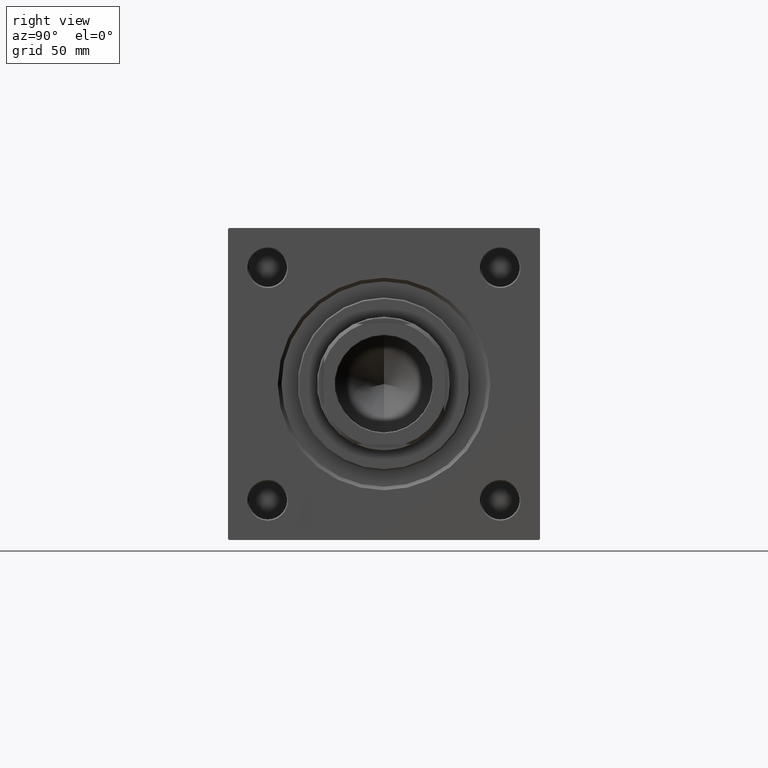
[diagram: clean part render]
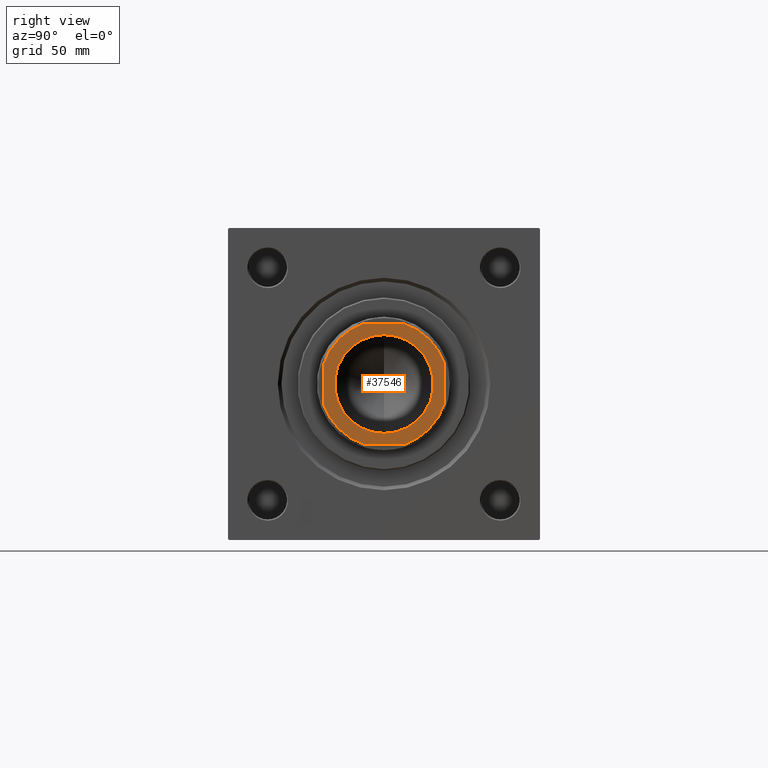
[diagram: same view with one face highlighted and labeled with its STEP entity id]
A machine part, right view. The second image highlights one B-rep face of the part: STEP entity #37546.
In plain terms, the highlighted planar face has unit normal (1, 0, -0).
Its self-contained STEP definition (entity closure, byte-faithful):
#311 = LINE ( 'NONE', #7260, #43880 ) ;
#563 = DIRECTION ( 'NONE',  ( 2.081668171172168513E-16, -1.000000000000000000, 0.000000000000000000 ) ) ;
#1330 = ORIENTED_EDGE ( 'NONE', *, *, #39377, .T. ) ;
#2009 = DIRECTION ( 'NONE',  ( -0.000000000000000000, 0.000000000000000000, 1.000000000000000000 ) ) ;
#2694 = CARTESIAN_POINT ( 'NONE',  ( -24.99999999999999645, -8.789197915623542912, 178.0000000000000284 ) ) ;
#2878 = EDGE_LOOP ( 'NONE', ( #50316, #1330 ) ) ;
#3712 = VERTEX_POINT ( 'NONE', #41317 ) ;
#4905 = EDGE_CURVE ( 'NONE', #32630, #45050, #18047, .T. ) ;
#6199 = VERTEX_POINT ( 'NONE', #19224 ) ;
#6571 = FACE_OUTER_BOUND ( 'NONE', #10293, .T. ) ;
#6693 = CIRCLE ( 'NONE', #35382, 26.50000000000001776 ) ;
#6710 = ORIENTED_EDGE ( 'NONE', *, *, #47039, .T. ) ;
#7260 = CARTESIAN_POINT ( 'NONE',  ( -25.00000000000000711, 25.00000000000000000, 178.0000000000000284 ) ) ;
#8391 = LINE ( 'NONE', #43787, #21760 ) ;
#8435 = CARTESIAN_POINT ( 'NONE',  ( 0.000000000000000000, 0.000000000000000000, 178.0000000000000284 ) ) ;
#8585 = CARTESIAN_POINT ( 'NONE',  ( 0.000000000000000000, 0.000000000000000000, 178.0000000000000284 ) ) ;
#9084 = CARTESIAN_POINT ( 'NONE',  ( -8.789197915623537583, 25.00000000000000000, 178.0000000000000284 ) ) ;
#9869 = CARTESIAN_POINT ( 'NONE',  ( 25.00000000000000000, -8.789197915623326196, 178.0000000000000284 ) ) ;
#10180 = FACE_BOUND ( 'NONE', #2878, .T. ) ;
#10293 = EDGE_LOOP ( 'NONE', ( #32061, #34969, #23755, #10612, #6710, #10517, #49334, #18377 ) ) ;
#10308 = DIRECTION ( 'NONE',  ( 1.000000000000000000, 0.000000000000000000, 0.000000000000000000 ) ) ;
#10517 = ORIENTED_EDGE ( 'NONE', *, *, #37064, .T. ) ;
#10560 = DIRECTION ( 'NONE',  ( 0.000000000000000000, -0.000000000000000000, -1.000000000000000000 ) ) ;
#10612 = ORIENTED_EDGE ( 'NONE', *, *, #15363, .T. ) ;
#11517 = CARTESIAN_POINT ( 'NONE',  ( 0.000000000000000000, 0.000000000000000000, 178.0000000000000284 ) ) ;
#11594 = AXIS2_PLACEMENT_3D ( 'NONE', #16939, #2009, #32556 ) ;
#12128 = DIRECTION ( 'NONE',  ( 1.000000000000000000, 0.000000000000000000, 0.000000000000000000 ) ) ;
#12153 = EDGE_CURVE ( 'NONE', #6199, #3712, #32110, .T. ) ;
#12958 = CARTESIAN_POINT ( 'NONE',  ( 25.00000000000000000, 25.00000000000000000, 178.0000000000000284 ) ) ;
#14214 = DIRECTION ( 'NONE',  ( 1.000000000000000000, 0.000000000000000000, 0.000000000000000000 ) ) ;
#15108 = EDGE_CURVE ( 'NONE', #30511, #38578, #6693, .T. ) ;
#15363 = EDGE_CURVE ( 'NONE', #35158, #18705, #41074, .T. ) ;
#15829 = VERTEX_POINT ( 'NONE', #2694 ) ;
#16939 = CARTESIAN_POINT ( 'NONE',  ( 0.000000000000000000, 0.000000000000000000, 178.0000000000000284 ) ) ;
#18047 = LINE ( 'NONE', #49332, #21215 ) ;
#18207 = AXIS2_PLACEMENT_3D ( 'NONE', #8435, #43331, #48854 ) ;
#18377 = ORIENTED_EDGE ( 'NONE', *, *, #25165, .T. ) ;
#18705 = VERTEX_POINT ( 'NONE', #42896 ) ;
#18898 = DIRECTION ( 'NONE',  ( -0.000000000000000000, 0.000000000000000000, 1.000000000000000000 ) ) ;
#19224 = CARTESIAN_POINT ( 'NONE',  ( 20.55000000000001137, 0.000000000000000000, 178.0000000000000284 ) ) ;
#20121 = CARTESIAN_POINT ( 'NONE',  ( 8.789197915623512714, 25.00000000000000000, 178.0000000000000284 ) ) ;
#21215 = VECTOR ( 'NONE', #14214, 1000.000000000000000 ) ;
#21760 = VECTOR ( 'NONE', #24046, 1000.000000000000000 ) ;
#22317 = AXIS2_PLACEMENT_3D ( 'NONE', #25695, #10560, #10308 ) ;
#23000 = EDGE_CURVE ( 'NONE', #40297, #30511, #36026, .T. ) ;
#23755 = ORIENTED_EDGE ( 'NONE', *, *, #46438, .T. ) ;
#24046 = DIRECTION ( 'NONE',  ( -1.000000000000000000, -0.000000000000000000, -0.000000000000000000 ) ) ;
#24237 = DIRECTION ( 'NONE',  ( -0.000000000000000000, 0.000000000000000000, 1.000000000000000000 ) ) ;
#25165 = EDGE_CURVE ( 'NONE', #45050, #40297, #48791, .T. ) ;
#25519 = AXIS2_PLACEMENT_3D ( 'NONE', #34960, #42912, #12128 ) ;
#25695 = CARTESIAN_POINT ( 'NONE',  ( 0.000000000000000000, 0.000000000000000000, 178.0000000000000284 ) ) ;
#30160 = DIRECTION ( 'NONE',  ( 1.000000000000000000, 0.000000000000000000, 0.000000000000000000 ) ) ;
#30511 = VERTEX_POINT ( 'NONE', #44418 ) ;
#31240 = CIRCLE ( 'NONE', #11594, 26.50000000000002487 ) ;
#32061 = ORIENTED_EDGE ( 'NONE', *, *, #23000, .T. ) ;
#32110 = CIRCLE ( 'NONE', #18207, 20.55000000000001137 ) ;
#32556 = DIRECTION ( 'NONE',  ( 1.000000000000000000, 0.000000000000000000, 0.000000000000000000 ) ) ;
#32630 = VERTEX_POINT ( 'NONE', #46945 ) ;
#34860 = DIRECTION ( 'NONE',  ( -0.000000000000000000, 0.000000000000000000, 1.000000000000000000 ) ) ;
#34960 = CARTESIAN_POINT ( 'NONE',  ( 0.000000000000000000, 0.000000000000000000, 178.0000000000000284 ) ) ;
#34969 = ORIENTED_EDGE ( 'NONE', *, *, #15108, .T. ) ;
#35158 = VERTEX_POINT ( 'NONE', #9084 ) ;
#35382 = AXIS2_PLACEMENT_3D ( 'NONE', #8585, #24237, #39872 ) ;
#36026 = LINE ( 'NONE', #12958, #49526 ) ;
#37064 = EDGE_CURVE ( 'NONE', #15829, #32630, #31240, .T. ) ;
#37546 = ADVANCED_FACE ( 'NONE', ( #10180, #6571 ), #46080, .T. ) ;
#38441 = DIRECTION ( 'NONE',  ( 1.000000000000000000, 0.000000000000000000, 0.000000000000000000 ) ) ;
#38578 = VERTEX_POINT ( 'NONE', #20121 ) ;
#39377 = EDGE_CURVE ( 'NONE', #3712, #6199, #42828, .T. ) ;
#39872 = DIRECTION ( 'NONE',  ( 1.000000000000000000, 0.000000000000000000, 0.000000000000000000 ) ) ;
#40244 = AXIS2_PLACEMENT_3D ( 'NONE', #45825, #18898, #30160 ) ;
#40297 = VERTEX_POINT ( 'NONE', #9869 ) ;
#41074 = CIRCLE ( 'NONE', #25519, 26.50000000000002487 ) ;
#41317 = CARTESIAN_POINT ( 'NONE',  ( -20.55000000000001137, 2.516649172247812343E-15, 178.0000000000000284 ) ) ;
#42828 = CIRCLE ( 'NONE', #22317, 20.55000000000001137 ) ;
#42896 = CARTESIAN_POINT ( 'NONE',  ( -25.00000000000000355, 8.789197915623530477, 178.0000000000000284 ) ) ;
#42912 = DIRECTION ( 'NONE',  ( -0.000000000000000000, 0.000000000000000000, 1.000000000000000000 ) ) ;
#43331 = DIRECTION ( 'NONE',  ( 0.000000000000000000, -0.000000000000000000, -1.000000000000000000 ) ) ;
#43787 = CARTESIAN_POINT ( 'NONE',  ( -25.00000000000000711, 25.00000000000000000, 178.0000000000000284 ) ) ;
#43880 = VECTOR ( 'NONE', #563, 1000.000000000000000 ) ;
#44418 = CARTESIAN_POINT ( 'NONE',  ( 25.00000000000000000, 8.789197915623512714, 178.0000000000000284 ) ) ;
#45050 = VERTEX_POINT ( 'NONE', #50068 ) ;
#45515 = AXIS2_PLACEMENT_3D ( 'NONE', #11517, #34860, #38441 ) ;
#45825 = CARTESIAN_POINT ( 'NONE',  ( 0.000000000000000000, 0.000000000000000000, 178.0000000000000284 ) ) ;
#46080 = PLANE ( 'NONE',  #40244 ) ;
#46438 = EDGE_CURVE ( 'NONE', #38578, #35158, #8391, .T. ) ;
#46945 = CARTESIAN_POINT ( 'NONE',  ( -8.789197915623530477, -25.00000000000000355, 178.0000000000000284 ) ) ;
#47039 = EDGE_CURVE ( 'NONE', #18705, #15829, #311, .T. ) ;
#47833 = DIRECTION ( 'NONE',  ( -0.000000000000000000, 1.000000000000000000, -0.000000000000000000 ) ) ;
#48791 = CIRCLE ( 'NONE', #45515, 26.49999999999995381 ) ;
#48854 = DIRECTION ( 'NONE',  ( 1.000000000000000000, 0.000000000000000000, 0.000000000000000000 ) ) ;
#49332 = CARTESIAN_POINT ( 'NONE',  ( -24.99999999999999645, -25.00000000000000355, 178.0000000000000284 ) ) ;
#49334 = ORIENTED_EDGE ( 'NONE', *, *, #4905, .T. ) ;
#49526 = VECTOR ( 'NONE', #47833, 1000.000000000000000 ) ;
#50068 = CARTESIAN_POINT ( 'NONE',  ( 8.789197915623322643, -25.00000000000000355, 178.0000000000000284 ) ) ;
#50316 = ORIENTED_EDGE ( 'NONE', *, *, #12153, .T. ) ;